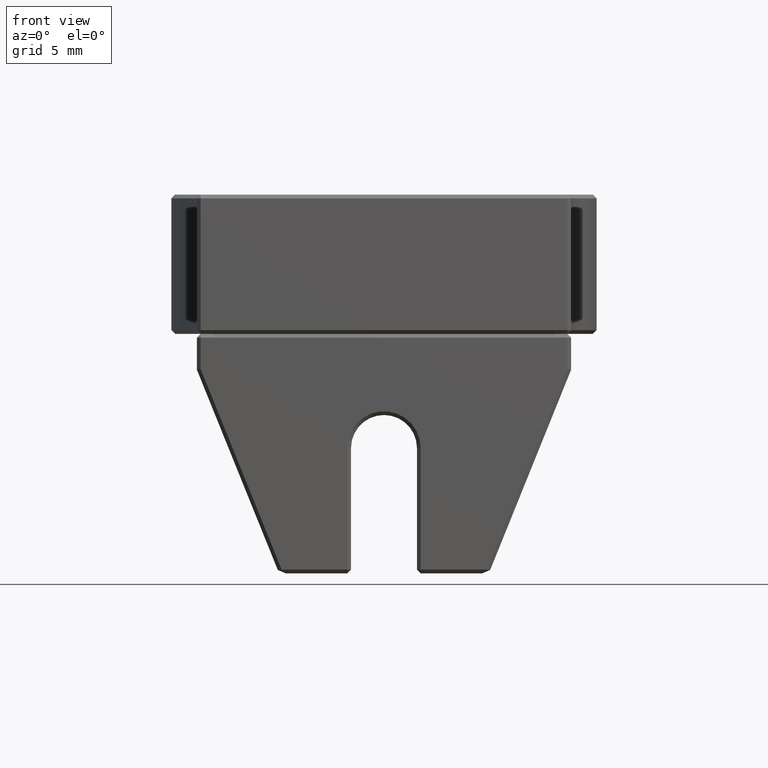
[diagram: clean part render]
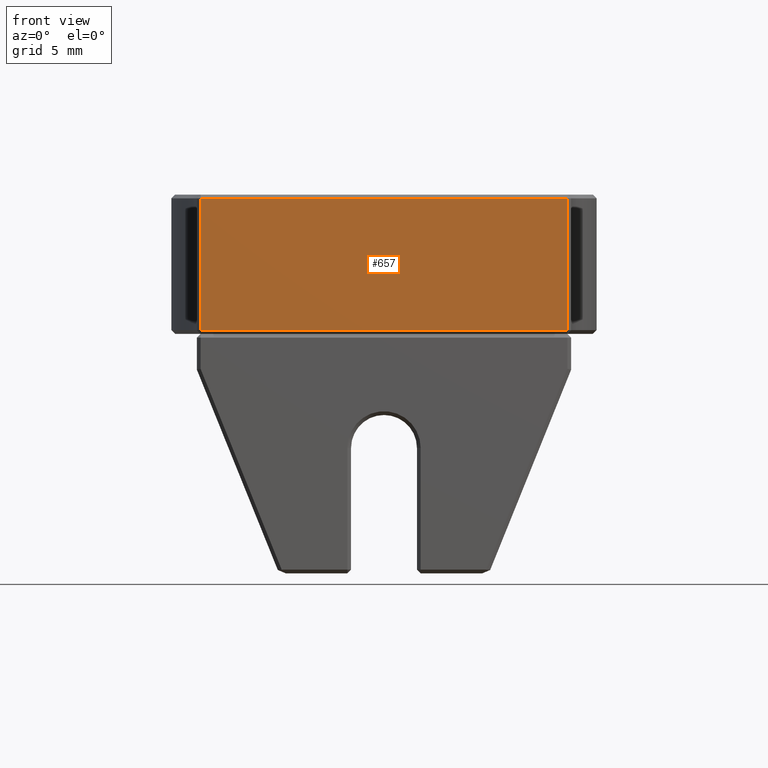
[diagram: same view with one face highlighted and labeled with its STEP entity id]
A machine part, front view. The second image highlights one B-rep face of the part: STEP entity #657.
In plain terms, the highlighted planar face has unit normal (0, -1, 0).
Its self-contained STEP definition (entity closure, byte-faithful):
#29 = DIRECTION ( 'NONE',  ( 0.000000000000000000, 0.000000000000000000, 1.000000000000000000 ) ) ;
#64 = VECTOR ( 'NONE', #3010, 1000.000000000000000 ) ;
#121 = EDGE_LOOP ( 'NONE', ( #5083, #2157, #4671, #208 ) ) ;
#128 = VERTEX_POINT ( 'NONE', #5201 ) ;
#208 = ORIENTED_EDGE ( 'NONE', *, *, #2683, .T. ) ;
#260 = CARTESIAN_POINT ( 'NONE',  ( -14.19999999999999929, 0.000000000000000000, -0.2499999999999967526 ) ) ;
#468 = CARTESIAN_POINT ( 'NONE',  ( -12.25000000000000355, 0.000000000000000000, -0.2499999999999967526 ) ) ;
#657 = ADVANCED_FACE ( 'NONE', ( #5021 ), #5345, .T. ) ;
#658 = VECTOR ( 'NONE', #1322, 1000.000000000000000 ) ;
#1310 = CARTESIAN_POINT ( 'NONE',  ( 12.25000000000000178, 0.000000000000000000, -0.2499999999999967526 ) ) ;
#1322 = DIRECTION ( 'NONE',  ( -1.000000000000000000, 0.000000000000000000, 0.000000000000000000 ) ) ;
#1616 = DIRECTION ( 'NONE',  ( 0.000000000000000000, -0.000000000000000000, -1.000000000000000000 ) ) ;
#1665 = AXIS2_PLACEMENT_3D ( 'NONE', #2737, #5300, #1616 ) ;
#1948 = VECTOR ( 'NONE', #6247, 1000.000000000000000 ) ;
#2157 = ORIENTED_EDGE ( 'NONE', *, *, #2186, .T. ) ;
#2186 = EDGE_CURVE ( 'NONE', #3143, #5405, #3232, .T. ) ;
#2234 = CARTESIAN_POINT ( 'NONE',  ( 12.50000000000000000, 0.000000000000000000, -9.050000000000004263 ) ) ;
#2620 = VECTOR ( 'NONE', #29, 1000.000000000000000 ) ;
#2683 = EDGE_CURVE ( 'NONE', #2937, #128, #6058, .T. ) ;
#2737 = CARTESIAN_POINT ( 'NONE',  ( -14.19999999999999929, 0.000000000000000000, -9.300000000000000711 ) ) ;
#2937 = VERTEX_POINT ( 'NONE', #6043 ) ;
#3010 = DIRECTION ( 'NONE',  ( 1.000000000000000000, 0.000000000000000000, -0.000000000000000000 ) ) ;
#3143 = VERTEX_POINT ( 'NONE', #1310 ) ;
#3232 = LINE ( 'NONE', #260, #658 ) ;
#3354 = LINE ( 'NONE', #4057, #1948 ) ;
#3553 = EDGE_CURVE ( 'NONE', #5405, #2937, #3354, .T. ) ;
#3855 = EDGE_CURVE ( 'NONE', #128, #3143, #4996, .T. ) ;
#4057 = CARTESIAN_POINT ( 'NONE',  ( -12.25000000000000355, 0.000000000000000000, -9.300000000000000711 ) ) ;
#4542 = CARTESIAN_POINT ( 'NONE',  ( 12.25000000000000178, 0.000000000000000000, 0.000000000000000000 ) ) ;
#4671 = ORIENTED_EDGE ( 'NONE', *, *, #3553, .T. ) ;
#4996 = LINE ( 'NONE', #4542, #2620 ) ;
#5021 = FACE_OUTER_BOUND ( 'NONE', #121, .T. ) ;
#5083 = ORIENTED_EDGE ( 'NONE', *, *, #3855, .T. ) ;
#5201 = CARTESIAN_POINT ( 'NONE',  ( 12.25000000000000178, 0.000000000000000000, -9.050000000000004263 ) ) ;
#5300 = DIRECTION ( 'NONE',  ( 0.000000000000000000, -1.000000000000000000, 0.000000000000000000 ) ) ;
#5345 = PLANE ( 'NONE',  #1665 ) ;
#5405 = VERTEX_POINT ( 'NONE', #468 ) ;
#6043 = CARTESIAN_POINT ( 'NONE',  ( -12.25000000000000355, 0.000000000000000000, -9.050000000000004263 ) ) ;
#6058 = LINE ( 'NONE', #2234, #64 ) ;
#6247 = DIRECTION ( 'NONE',  ( 0.000000000000000000, 0.000000000000000000, -1.000000000000000000 ) ) ;